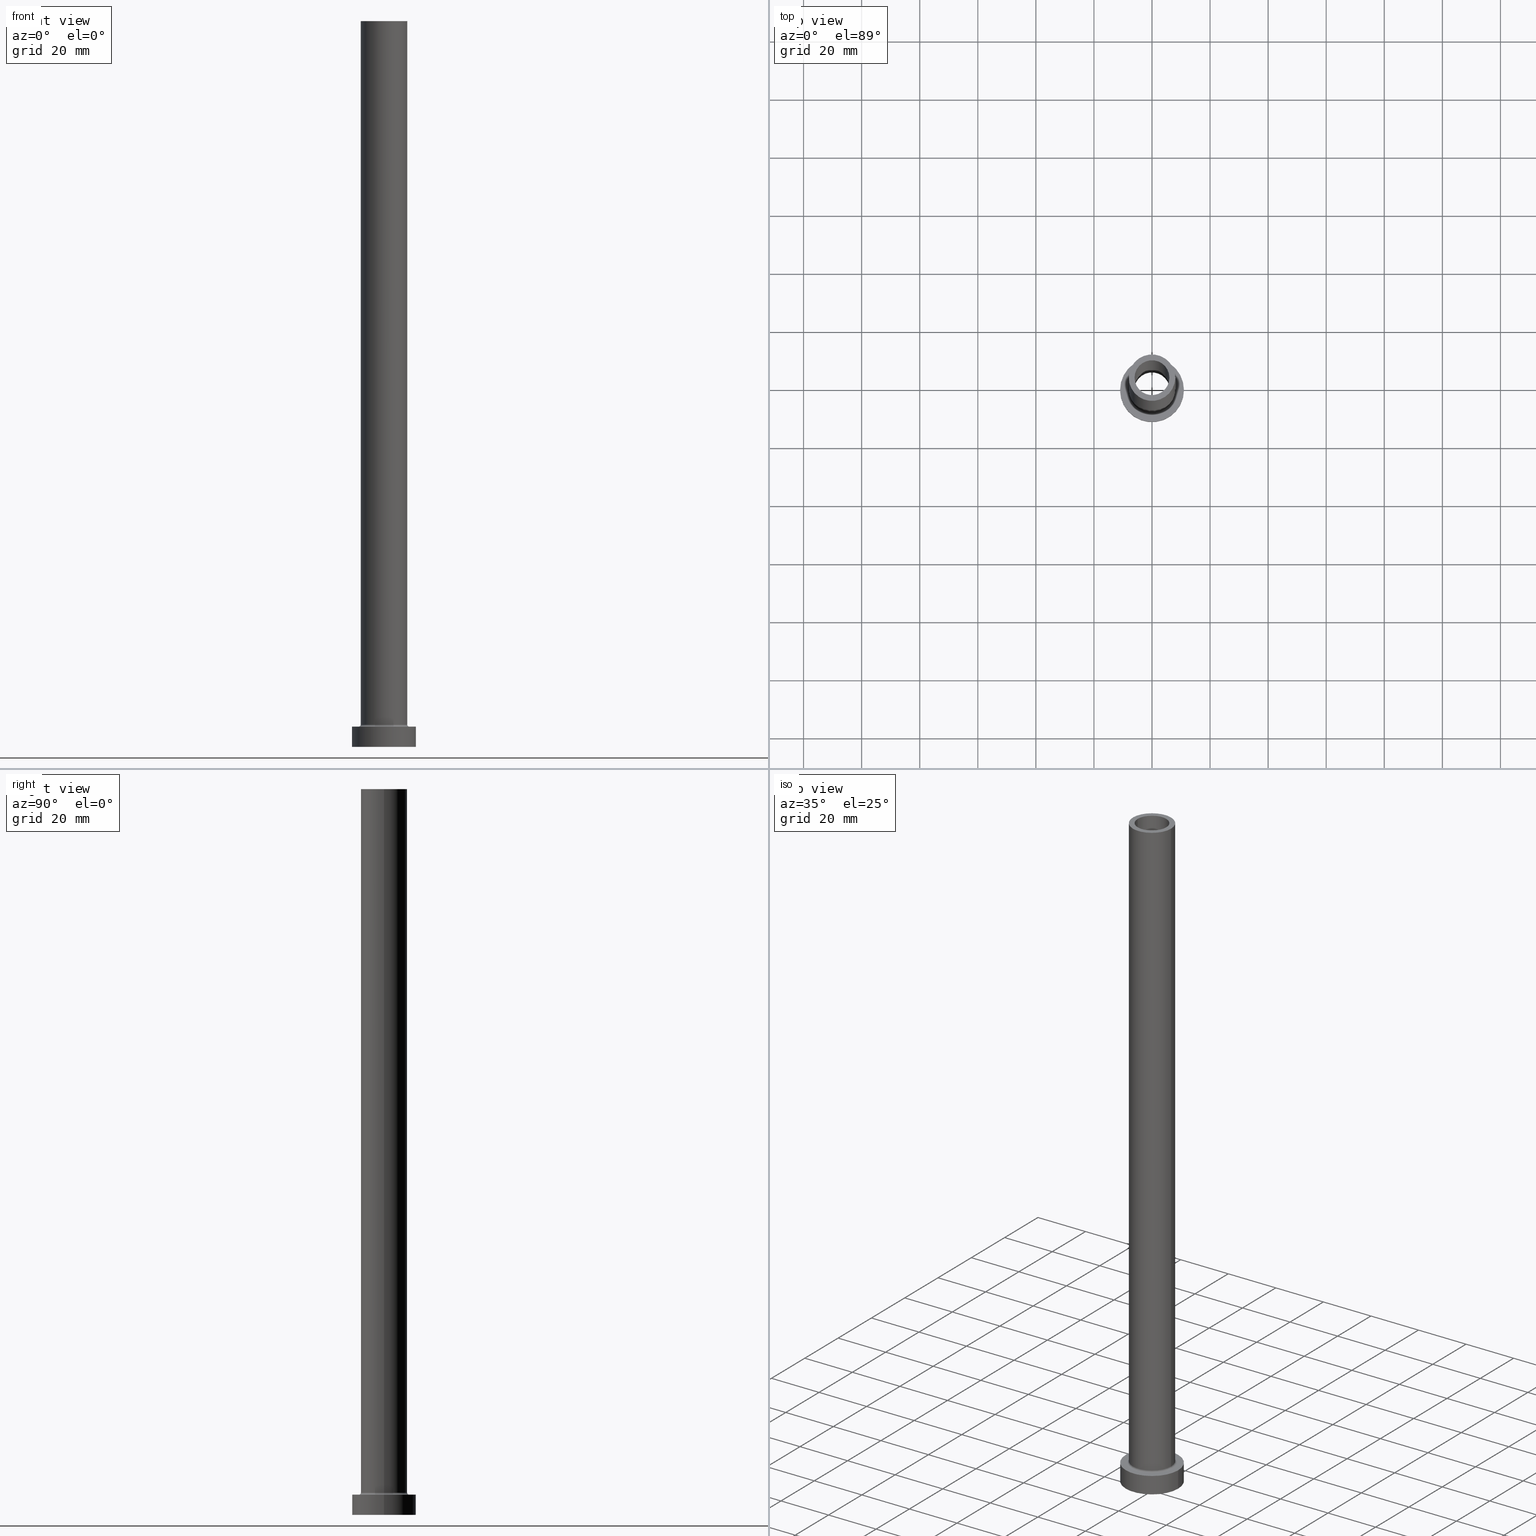
[diagram: canonical four-view strip — front | top / right | iso, engineering-drawing reading convention]
A machine part, canonical four-view strip (front | top / right | iso — engineering-drawing reading convention). The complete STEP part file that produces these views, byte-faithful:
ISO-10303-21;
HEADER;
FILE_DESCRIPTION (( 'STEP AP203' ),
    '1' );
FILE_NAME ('c211.STEP',
    '2023-02-13T07:41:48',
    ( '' ),
    ( '' ),
    'SwSTEP 2.0',
    'SolidWorks 2019',
    '' );
FILE_SCHEMA (( 'CONFIG_CONTROL_DESIGN' ));
ENDSEC;

DATA;
#1 = VERTEX_POINT ( 'NONE', #60 ) ;
#2 = ORIENTED_EDGE ( 'NONE', *, *, #427, .F. ) ;
#3 = CYLINDRICAL_SURFACE ( 'NONE', #113, 8.000000000000000000 ) ;
#4 = EDGE_CURVE ( 'NONE', #99, #182, #120, .T. ) ;
#5 = DIRECTION ( 'NONE',  ( 0.000000000000000000, 0.000000000000000000, 1.000000000000000000 ) ) ;
#6 = ORIENTED_EDGE ( 'NONE', *, *, #343, .F. ) ;
#7 = FACE_OUTER_BOUND ( 'NONE', #455, .T. ) ;
#8 = EDGE_CURVE ( 'NONE', #459, #311, #299, .T. ) ;
#9 = CLOSED_SHELL ( 'NONE', ( #107, #49, #171, #89, #153, #320, #443, #275, #84, #54, #461, #241, #287, #16 ) ) ;
#10 = LOCAL_TIME ( 8, 41, 48.00000000000000000, #398 ) ;
#11 = APPLICATION_PROTOCOL_DEFINITION ( 'international standard', 'config_control_design', 1994, #349 ) ;
#12 = DIRECTION ( 'NONE',  ( 0.000000000000000000, 0.000000000000000000, -1.000000000000000000 ) ) ;
#13 = DATE_AND_TIME ( #366, #10 ) ;
#14 = ADVANCED_BREP_SHAPE_REPRESENTATION ( 'c211', ( #23, #36 ), #452 ) ;
#15 = PLANE ( 'NONE',  #45 ) ;
#16 = ADVANCED_FACE ( 'NONE', ( #199 ), #340, .F. ) ;
#17 = EDGE_LOOP ( 'NONE', ( #245, #172 ) ) ;
#18 = AXIS2_PLACEMENT_3D ( 'NONE', #145, #117, #118 ) ;
#19 = TOROIDAL_SURFACE ( 'NONE', #280, 8.699999999999999289, 0.6999999999999999556 ) ;
#20 = CARTESIAN_POINT ( 'NONE',  ( -6.000000000000000888, 0.000000000000000000, 205.0000000000000284 ) ) ;
#21 = CARTESIAN_POINT ( 'NONE',  ( 0.000000000000000000, 0.000000000000000000, 205.0000000000000284 ) ) ;
#22 = FACE_OUTER_BOUND ( 'NONE', #220, .T. ) ;
#23 = MANIFOLD_SOLID_BREP ( 'Odebrat vysunut�m4', #9 ) ;
#24 = EDGE_LOOP ( 'NONE', ( #383, #395, #177, #236 ) ) ;
#25 = PERSON_AND_ORGANIZATION_ROLE ( 'creator' ) ;
#26 = AXIS2_PLACEMENT_3D ( 'NONE', #259, #5, #46 ) ;
#27 = CARTESIAN_POINT ( 'NONE',  ( 0.000000000000000000, 0.000000000000000000, 7.000000000000000000 ) ) ;
#28 = APPROVAL_DATE_TIME ( #197, #336 ) ;
#29 = PRODUCT_DEFINITION ( 'NEZN�M�', '', #254, #210 ) ;
#30 = CYLINDRICAL_SURFACE ( 'NONE', #161, 11.00000000000000000 ) ;
#31 = APPROVAL_DATE_TIME ( #372, #278 ) ;
#32 = AXIS2_PLACEMENT_3D ( 'NONE', #429, #106, #323 ) ;
#33 = ORIENTED_EDGE ( 'NONE', *, *, #282, .T. ) ;
#34 = ORIENTED_EDGE ( 'NONE', *, *, #310, .F. ) ;
#35 = CARTESIAN_POINT ( 'NONE',  ( -6.150000000000000355, 0.000000000000000000, 222.3948268171890845 ) ) ;
#36 = AXIS2_PLACEMENT_3D ( 'NONE', #442, #327, #301 ) ;
#37 = VERTEX_POINT ( 'NONE', #267 ) ;
#38 = CARTESIAN_POINT ( 'NONE',  ( -8.000000000000000000, 0.000000000000000000, 7.700000000000012612 ) ) ;
#39 = CARTESIAN_POINT ( 'NONE',  ( 0.000000000000000000, 0.000000000000000000, 7.700000000000012612 ) ) ;
#40 = EDGE_LOOP ( 'NONE', ( #290, #364, #189, #432 ) ) ;
#41 = DIRECTION ( 'NONE',  ( 1.000000000000000000, 0.000000000000000000, 0.000000000000000000 ) ) ;
#42 = VERTEX_POINT ( 'NONE', #404 ) ;
#43 = CARTESIAN_POINT ( 'NONE',  ( 0.000000000000000000, 0.000000000000000000, 205.0000000000000284 ) ) ;
#44 = DIRECTION ( 'NONE',  ( 1.000000000000000000, 0.000000000000000000, 0.000000000000000000 ) ) ;
#45 = AXIS2_PLACEMENT_3D ( 'NONE', #396, #82, #221 ) ;
#46 = DIRECTION ( 'NONE',  ( 1.000000000000000000, 0.000000000000000000, -0.000000000000000000 ) ) ;
#47 = VECTOR ( 'NONE', #105, 1000.000000000000000 ) ;
#48 = CARTESIAN_POINT ( 'NONE',  ( 8.000000000000000000, 9.797174393178825657E-16, 7.700000000000012612 ) ) ;
#49 = ADVANCED_FACE ( 'NONE', ( #92 ), #302, .F. ) ;
#50 = DIRECTION ( 'NONE',  ( -1.000000000000000000, 0.000000000000000000, 0.000000000000000000 ) ) ;
#51 =( LENGTH_UNIT ( ) NAMED_UNIT ( * ) SI_UNIT ( .MILLI., .METRE. ) );
#52 = ORIENTED_EDGE ( 'NONE', *, *, #265, .F. ) ;
#53 = CARTESIAN_POINT ( 'NONE',  ( 11.00000000000000000, 1.347111479062088405E-15, 0.000000000000000000 ) ) ;
#54 = ADVANCED_FACE ( 'NONE', ( #447, #129 ), #387, .T. ) ;
#55 = ORIENTED_EDGE ( 'NONE', *, *, #355, .F. ) ;
#56 = CIRCLE ( 'NONE', #131, 6.150000000000000355 ) ;
#57 = AXIS2_PLACEMENT_3D ( 'NONE', #341, #165, #203 ) ;
#58 = ORIENTED_EDGE ( 'NONE', *, *, #159, .T. ) ;
#59 = PERSON_AND_ORGANIZATION ( #318, #147 ) ;
#60 = CARTESIAN_POINT ( 'NONE',  ( 8.000000000000000000, 9.797174393178825657E-16, 250.0000000000000000 ) ) ;
#61 = DIRECTION ( 'NONE',  ( 0.000000000000000000, 0.000000000000000000, 1.000000000000000000 ) ) ;
#62 = AXIS2_PLACEMENT_3D ( 'NONE', #181, #212, #44 ) ;
#63 = ORIENTED_EDGE ( 'NONE', *, *, #94, .F. ) ;
#64 = DIRECTION ( 'NONE',  ( 0.000000000000000000, 0.000000000000000000, 1.000000000000000000 ) ) ;
#65 = DIRECTION ( 'NONE',  ( 1.000000000000000000, 0.000000000000000000, 0.000000000000000000 ) ) ;
#66 = COORDINATED_UNIVERSAL_TIME_OFFSET ( 1, 0, .AHEAD. ) ;
#67 = CIRCLE ( 'NONE', #146, 8.000000000000000000 ) ;
#68 = VERTEX_POINT ( 'NONE', #316 ) ;
#69 = ORIENTED_EDGE ( 'NONE', *, *, #427, .T. ) ;
#70 = DIRECTION ( 'NONE',  ( 1.000000000000000000, 0.000000000000000000, -0.000000000000000000 ) ) ;
#71 = CARTESIAN_POINT ( 'NONE',  ( 8.000000000000000000, 9.797174393178825657E-16, 250.0000000000000000 ) ) ;
#72 = EDGE_LOOP ( 'NONE', ( #216, #55 ) ) ;
#73 = DIRECTION ( 'NONE',  ( 0.000000000000000000, 0.000000000000000000, -1.000000000000000000 ) ) ;
#74 = EDGE_LOOP ( 'NONE', ( #222, #251, #188, #115 ) ) ;
#75 = DIRECTION ( 'NONE',  ( 0.000000000000000000, 0.000000000000000000, 1.000000000000000000 ) ) ;
#76 = EDGE_LOOP ( 'NONE', ( #337, #353 ) ) ;
#77 = CARTESIAN_POINT ( 'NONE',  ( -8.000000000000000000, 0.000000000000000000, 250.0000000000000000 ) ) ;
#78 = CARTESIAN_POINT ( 'NONE',  ( 8.699999999999999289, 0.000000000000000000, 7.000000000000006217 ) ) ;
#79 = CARTESIAN_POINT ( 'NONE',  ( 0.000000000000000000, 0.000000000000000000, 250.0000000000000000 ) ) ;
#80 = EDGE_CURVE ( 'NONE', #42, #37, #433, .T. ) ;
#81 = VERTEX_POINT ( 'NONE', #246 ) ;
#82 = DIRECTION ( 'NONE',  ( 0.000000000000000000, 0.000000000000000000, 1.000000000000000000 ) ) ;
#83 = ORIENTED_EDGE ( 'NONE', *, *, #140, .F. ) ;
#84 = ADVANCED_FACE ( 'NONE', ( #356 ), #3, .T. ) ;
#85 = CIRCLE ( 'NONE', #198, 8.000000000000000000 ) ;
#86 = CYLINDRICAL_SURFACE ( 'NONE', #346, 6.150000000000000355 ) ;
#87 = CARTESIAN_POINT ( 'NONE',  ( 0.000000000000000000, 0.000000000000000000, 7.000000000000000000 ) ) ;
#88 = DIRECTION ( 'NONE',  ( -0.000000000000000000, -0.000000000000000000, -1.000000000000000000 ) ) ;
#89 = ADVANCED_FACE ( 'NONE', ( #288 ), #166, .T. ) ;
#90 = EDGE_LOOP ( 'NONE', ( #144, #388, #314, #289 ) ) ;
#91 = DIRECTION ( 'NONE',  ( 1.000000000000000000, 0.000000000000000000, 0.000000000000000000 ) ) ;
#92 = FACE_OUTER_BOUND ( 'NONE', #40, .T. ) ;
#93 = DIRECTION ( 'NONE',  ( 0.000000000000000000, 0.000000000000000000, 1.000000000000000000 ) ) ;
#94 = EDGE_CURVE ( 'NONE', #130, #223, #365, .T. ) ;
#95 = AXIS2_PLACEMENT_3D ( 'NONE', #237, #93, #338 ) ;
#96 = MECHANICAL_CONTEXT ( 'NONE', #163, 'mechanical' ) ;
#97 = CALENDAR_DATE ( 2023, 13, 2 ) ;
#98 = CC_DESIGN_PERSON_AND_ORGANIZATION_ASSIGNMENT ( #274, #134, ( #254 ) ) ;
#99 = VERTEX_POINT ( 'NONE', #414 ) ;
#100 = PERSON_AND_ORGANIZATION_ROLE ( 'classification_officer' ) ;
#101 = ORIENTED_EDGE ( 'NONE', *, *, #265, .T. ) ;
#102 = LINE ( 'NONE', #394, #213 ) ;
#103 = SECURITY_CLASSIFICATION_LEVEL ( 'unclassified' ) ;
#104 = AXIS2_PLACEMENT_3D ( 'NONE', #389, #363, #298 ) ;
#105 = DIRECTION ( 'NONE',  ( -0.000000000000000000, -0.000000000000000000, -1.000000000000000000 ) ) ;
#106 = DIRECTION ( 'NONE',  ( -0.000000000000000000, -0.000000000000000000, -1.000000000000000000 ) ) ;
#107 = ADVANCED_FACE ( 'NONE', ( #202 ), #258, .F. ) ;
#108 = ORIENTED_EDGE ( 'NONE', *, *, #303, .F. ) ;
#109 = EDGE_CURVE ( 'NONE', #37, #162, #406, .T. ) ;
#110 = CARTESIAN_POINT ( 'NONE',  ( 0.000000000000000000, 0.000000000000000000, 222.3948268171890845 ) ) ;
#111 = VERTEX_POINT ( 'NONE', #38 ) ;
#112 = CARTESIAN_POINT ( 'NONE',  ( 0.000000000000000000, 0.000000000000000000, 0.000000000000000000 ) ) ;
#113 = AXIS2_PLACEMENT_3D ( 'NONE', #276, #211, #174 ) ;
#114 = AXIS2_PLACEMENT_3D ( 'NONE', #307, #64, #201 ) ;
#115 = ORIENTED_EDGE ( 'NONE', *, *, #195, .T. ) ;
#116 = CARTESIAN_POINT ( 'NONE',  ( 0.000000000000000000, 0.000000000000000000, 250.0000000000000000 ) ) ;
#117 = DIRECTION ( 'NONE',  ( 0.000000000000000000, 0.000000000000000000, 1.000000000000000000 ) ) ;
#118 = DIRECTION ( 'NONE',  ( 1.000000000000000000, 0.000000000000000000, 0.000000000000000000 ) ) ;
#119 = CARTESIAN_POINT ( 'NONE',  ( 6.000000000000000888, 7.347880794884119736E-16, 205.0000000000000284 ) ) ;
#120 = CIRCLE ( 'NONE', #270, 11.00000000000000000 ) ;
#121 = EDGE_CURVE ( 'NONE', #162, #37, #56, .T. ) ;
#122 = SHAPE_DEFINITION_REPRESENTATION ( #255, #14 ) ;
#123 = PLANE ( 'NONE',  #26 ) ;
#124 = SECURITY_CLASSIFICATION ( '', '', #103 ) ;
#125 = CARTESIAN_POINT ( 'NONE',  ( 6.000000000000000888, 7.347880794884119736E-16, 250.0000000000000000 ) ) ;
#126 = DIRECTION ( 'NONE',  ( 1.000000000000000000, 0.000000000000000000, 0.000000000000000000 ) ) ;
#127 = DIRECTION ( 'NONE',  ( 0.000000000000000000, 0.000000000000000000, 1.000000000000000000 ) ) ;
#128 = DIRECTION ( 'NONE',  ( 0.000000000000000000, 0.000000000000000000, -1.000000000000000000 ) ) ;
#129 = FACE_OUTER_BOUND ( 'NONE', #17, .T. ) ;
#130 = VERTEX_POINT ( 'NONE', #248 ) ;
#131 = AXIS2_PLACEMENT_3D ( 'NONE', #112, #328, #178 ) ;
#132 = CC_DESIGN_SECURITY_CLASSIFICATION ( #124, ( #254 ) ) ;
#133 = PERSON_AND_ORGANIZATION ( #318, #147 ) ;
#134 = PERSON_AND_ORGANIZATION_ROLE ( 'design_supplier' ) ;
#135 = CARTESIAN_POINT ( 'NONE',  ( -11.00000000000000000, 0.000000000000000000, 7.000000000000000000 ) ) ;
#136 = CARTESIAN_POINT ( 'NONE',  ( 0.000000000000000000, 0.000000000000000000, 250.0000000000000000 ) ) ;
#137 = CIRCLE ( 'NONE', #430, 8.699999999999999289 ) ;
#138 = ORIENTED_EDGE ( 'NONE', *, *, #140, .T. ) ;
#139 = CARTESIAN_POINT ( 'NONE',  ( 0.000000000000000000, 0.000000000000000000, 250.0000000000000000 ) ) ;
#140 = EDGE_CURVE ( 'NONE', #435, #311, #102, .T. ) ;
#141 = FACE_OUTER_BOUND ( 'NONE', #386, .T. ) ;
#142 = ORIENTED_EDGE ( 'NONE', *, *, #355, .T. ) ;
#143 = DIRECTION ( 'NONE',  ( 0.000000000000000000, 0.000000000000000000, 1.000000000000000000 ) ) ;
#144 = ORIENTED_EDGE ( 'NONE', *, *, #4, .F. ) ;
#145 = CARTESIAN_POINT ( 'NONE',  ( 0.000000000000000000, 0.000000000000000000, 7.700000000000012612 ) ) ;
#146 = AXIS2_PLACEMENT_3D ( 'NONE', #369, #257, #357 ) ;
#147 = ORGANIZATION ( 'NEUR�EN�', 'NEUR�EN�', '' ) ;
#148 = EDGE_CURVE ( 'NONE', #1, #260, #370, .T. ) ;
#149 = CARTESIAN_POINT ( 'NONE',  ( 0.000000000000000000, 0.000000000000000000, 205.0000000000000284 ) ) ;
#150 = APPROVAL_ROLE ( '' ) ;
#151 = DIRECTION ( 'NONE',  ( 0.000000000000000000, 0.000000000000000000, -1.000000000000000000 ) ) ;
#152 = DIRECTION ( 'NONE',  ( 1.000000000000000000, 0.000000000000000000, 0.000000000000000000 ) ) ;
#153 = ADVANCED_FACE ( 'NONE', ( #238 ), #30, .T. ) ;
#154 = VECTOR ( 'NONE', #73, 1000.000000000000000 ) ;
#155 = LOCAL_TIME ( 8, 41, 48.00000000000000000, #284 ) ;
#156 = FACE_OUTER_BOUND ( 'NONE', #322, .T. ) ;
#157 = CARTESIAN_POINT ( 'NONE',  ( 0.000000000000000000, 0.000000000000000000, 250.0000000000000000 ) ) ;
#158 = EDGE_LOOP ( 'NONE', ( #297, #138, #283, #306 ) ) ;
#159 = EDGE_CURVE ( 'NONE', #223, #130, #137, .T. ) ;
#160 = EDGE_CURVE ( 'NONE', #260, #111, #391, .T. ) ;
#161 = AXIS2_PLACEMENT_3D ( 'NONE', #253, #344, #378 ) ;
#162 = VERTEX_POINT ( 'NONE', #185 ) ;
#163 = APPLICATION_CONTEXT ( 'configuration controlled 3d designs of mechanical parts and assemblies' ) ;
#164 = DATE_AND_TIME ( #235, #155 ) ;
#165 = DIRECTION ( 'NONE',  ( 1.224646799147353207E-16, 1.000000000000000000, -0.000000000000000000 ) ) ;
#166 = CYLINDRICAL_SURFACE ( 'NONE', #413, 8.000000000000000000 ) ;
#167 = LINE ( 'NONE', #71, #431 ) ;
#168 = PERSON_AND_ORGANIZATION_ROLE ( 'creator' ) ;
#169 = AXIS2_PLACEMENT_3D ( 'NONE', #79, #319, #41 ) ;
#170 = CIRCLE ( 'NONE', #114, 11.00000000000000000 ) ;
#171 = ADVANCED_FACE ( 'NONE', ( #7 ), #277, .F. ) ;
#172 = ORIENTED_EDGE ( 'NONE', *, *, #148, .T. ) ;
#173 = CC_DESIGN_PERSON_AND_ORGANIZATION_ASSIGNMENT ( #416, #25, ( #29 ) ) ;
#174 = DIRECTION ( 'NONE',  ( -1.000000000000000000, 0.000000000000000000, 0.000000000000000000 ) ) ;
#175 = ORIENTED_EDGE ( 'NONE', *, *, #263, .T. ) ;
#176 = DIRECTION ( 'NONE',  ( 0.000000000000000000, 0.000000000000000000, -1.000000000000000000 ) ) ;
#177 = ORIENTED_EDGE ( 'NONE', *, *, #325, .T. ) ;
#178 = DIRECTION ( 'NONE',  ( 1.000000000000000000, 0.000000000000000000, 0.000000000000000000 ) ) ;
#179 = DIRECTION ( 'NONE',  ( 1.000000000000000000, 0.000000000000000000, 0.000000000000000000 ) ) ;
#180 = EDGE_LOOP ( 'NONE', ( #2, #209 ) ) ;
#181 = CARTESIAN_POINT ( 'NONE',  ( 0.000000000000000000, 0.000000000000000000, 7.000000000000000000 ) ) ;
#182 = VERTEX_POINT ( 'NONE', #227 ) ;
#183 = FACE_OUTER_BOUND ( 'NONE', #180, .T. ) ;
#184 = PERSON_AND_ORGANIZATION ( #318, #147 ) ;
#185 = CARTESIAN_POINT ( 'NONE',  ( 6.150000000000000355, 7.531577814756222064E-16, 0.000000000000000000 ) ) ;
#186 = CIRCLE ( 'NONE', #242, 6.150000000000000355 ) ;
#187 = CARTESIAN_POINT ( 'NONE',  ( 8.699999999999999289, 0.000000000000000000, 7.700000000000012612 ) ) ;
#188 = ORIENTED_EDGE ( 'NONE', *, *, #160, .T. ) ;
#189 = ORIENTED_EDGE ( 'NONE', *, *, #121, .T. ) ;
#190 = CC_DESIGN_PERSON_AND_ORGANIZATION_ASSIGNMENT ( #454, #168, ( #254 ) ) ;
#191 = VECTOR ( 'NONE', #217, 1000.000000000000000 ) ;
#192 = PERSON_AND_ORGANIZATION_ROLE ( 'design_owner' ) ;
#193 = VERTEX_POINT ( 'NONE', #324 ) ;
#194 = DIRECTION ( 'NONE',  ( 0.000000000000000000, 0.000000000000000000, -1.000000000000000000 ) ) ;
#195 = EDGE_CURVE ( 'NONE', #111, #450, #381, .T. ) ;
#196 = DIRECTION ( 'NONE',  ( 1.000000000000000000, 0.000000000000000000, 0.000000000000000000 ) ) ;
#197 = DATE_AND_TIME ( #200, #206 ) ;
#198 = AXIS2_PLACEMENT_3D ( 'NONE', #408, #61, #268 ) ;
#199 = FACE_OUTER_BOUND ( 'NONE', #350, .T. ) ;
#200 = CALENDAR_DATE ( 2023, 13, 2 ) ;
#201 = DIRECTION ( 'NONE',  ( 1.000000000000000000, 0.000000000000000000, 0.000000000000000000 ) ) ;
#202 = FACE_OUTER_BOUND ( 'NONE', #158, .T. ) ;
#203 = DIRECTION ( 'NONE',  ( -1.000000000000000000, 1.224646799147353207E-16, 0.000000000000000000 ) ) ;
#204 = EDGE_CURVE ( 'NONE', #311, #459, #231, .T. ) ;
#205 = CARTESIAN_POINT ( 'NONE',  ( 0.000000000000000000, 0.000000000000000000, 250.0000000000000000 ) ) ;
#206 = LOCAL_TIME ( 8, 41, 48.00000000000000000, #377 ) ;
#207 = LINE ( 'NONE', #135, #47 ) ;
#208 = ORIENTED_EDGE ( 'NONE', *, *, #422, .F. ) ;
#209 = ORIENTED_EDGE ( 'NONE', *, *, #329, .F. ) ;
#210 = DESIGN_CONTEXT ( 'detailed design', #349, 'design' ) ;
#211 = DIRECTION ( 'NONE',  ( -0.000000000000000000, -0.000000000000000000, -1.000000000000000000 ) ) ;
#212 = DIRECTION ( 'NONE',  ( -0.000000000000000000, -0.000000000000000000, -1.000000000000000000 ) ) ;
#213 = VECTOR ( 'NONE', #453, 1000.000000000000000 ) ;
#214 = LOCAL_TIME ( 8, 41, 48.00000000000000000, #448 ) ;
#215 = DIRECTION ( 'NONE',  ( -0.000000000000000000, -0.000000000000000000, -1.000000000000000000 ) ) ;
#216 = ORIENTED_EDGE ( 'NONE', *, *, #247, .F. ) ;
#217 = DIRECTION ( 'NONE',  ( -0.000000000000000000, -0.000000000000000000, -1.000000000000000000 ) ) ;
#218 = LINE ( 'NONE', #402, #334 ) ;
#219 = ORIENTED_EDGE ( 'NONE', *, *, #109, .F. ) ;
#220 = EDGE_LOOP ( 'NONE', ( #421, #332 ) ) ;
#221 = DIRECTION ( 'NONE',  ( 1.000000000000000000, 0.000000000000000000, -0.000000000000000000 ) ) ;
#222 = ORIENTED_EDGE ( 'NONE', *, *, #373, .F. ) ;
#223 = VERTEX_POINT ( 'NONE', #78 ) ;
#224 = VECTOR ( 'NONE', #215, 1000.000000000000000 ) ;
#225 = CC_DESIGN_APPROVAL ( #278, ( #254 ) ) ;
#226 = CARTESIAN_POINT ( 'NONE',  ( 6.150000000000000355, 7.531577814756222064E-16, 222.3948268171890845 ) ) ;
#227 = CARTESIAN_POINT ( 'NONE',  ( -11.00000000000000000, 0.000000000000000000, 7.000000000000000000 ) ) ;
#228 = PERSON_AND_ORGANIZATION ( #318, #147 ) ;
#229 = DIRECTION ( 'NONE',  ( -1.000000000000000000, 0.000000000000000000, 0.000000000000000000 ) ) ;
#230 = DIRECTION ( 'NONE',  ( 0.000000000000000000, 0.000000000000000000, -1.000000000000000000 ) ) ;
#231 = CIRCLE ( 'NONE', #375, 6.000000000000000888 ) ;
#232 =( NAMED_UNIT ( * ) PLANE_ANGLE_UNIT ( ) SI_UNIT ( $, .RADIAN. ) );
#233 = EDGE_LOOP ( 'NONE', ( #219, #312 ) ) ;
#234 = DIRECTION ( 'NONE',  ( -1.000000000000000000, 0.000000000000000000, 0.000000000000000000 ) ) ;
#235 = CALENDAR_DATE ( 2023, 13, 2 ) ;
#236 = ORIENTED_EDGE ( 'NONE', *, *, #160, .F. ) ;
#237 = CARTESIAN_POINT ( 'NONE',  ( 0.000000000000000000, 0.000000000000000000, 0.000000000000000000 ) ) ;
#238 = FACE_OUTER_BOUND ( 'NONE', #90, .T. ) ;
#239 = PRODUCT_RELATED_PRODUCT_CATEGORY ( 'detail', '', ( #392 ) ) ;
#240 = APPROVAL_DATE_TIME ( #13, #362 ) ;
#241 = ADVANCED_FACE ( 'NONE', ( #291 ), #86, .F. ) ;
#242 = AXIS2_PLACEMENT_3D ( 'NONE', #149, #295, #152 ) ;
#243 = APPROVAL_PERSON_ORGANIZATION ( #133, #336, #417 ) ;
#244 = CC_DESIGN_DATE_AND_TIME_ASSIGNMENT ( #409, #411, ( #29 ) ) ;
#245 = ORIENTED_EDGE ( 'NONE', *, *, #256, .T. ) ;
#246 = CARTESIAN_POINT ( 'NONE',  ( -6.000000000000000888, 0.000000000000000000, 250.0000000000000000 ) ) ;
#247 = EDGE_CURVE ( 'NONE', #81, #435, #420, .T. ) ;
#248 = CARTESIAN_POINT ( 'NONE',  ( -8.699999999999999289, 1.065442715258197248E-15, 7.000000000000006217 ) ) ;
#249 = ORIENTED_EDGE ( 'NONE', *, *, #195, .F. ) ;
#250 = CARTESIAN_POINT ( 'NONE',  ( -8.000000000000000000, 0.000000000000000000, 250.0000000000000000 ) ) ;
#251 = ORIENTED_EDGE ( 'NONE', *, *, #256, .F. ) ;
#252 = AXIS2_PLACEMENT_3D ( 'NONE', #286, #143, #70 ) ;
#253 = CARTESIAN_POINT ( 'NONE',  ( 0.000000000000000000, 0.000000000000000000, 7.000000000000000000 ) ) ;
#254 = PRODUCT_DEFINITION_FORMATION_WITH_SPECIFIED_SOURCE ( 'LIBOVOLN�', '', #392, .NOT_KNOWN. ) ;
#255 = PRODUCT_DEFINITION_SHAPE ( 'NONE', 'NONE',  #29 ) ;
#256 = EDGE_CURVE ( 'NONE', #260, #1, #67, .T. ) ;
#257 = DIRECTION ( 'NONE',  ( 0.000000000000000000, 0.000000000000000000, 1.000000000000000000 ) ) ;
#258 = CYLINDRICAL_SURFACE ( 'NONE', #412, 6.000000000000000888 ) ;
#259 = CARTESIAN_POINT ( 'NONE',  ( 0.000000000000000000, 0.000000000000000000, 0.000000000000000000 ) ) ;
#260 = VERTEX_POINT ( 'NONE', #250 ) ;
#261 = CYLINDRICAL_SURFACE ( 'NONE', #339, 11.00000000000000000 ) ;
#262 = DIRECTION ( 'NONE',  ( 0.000000000000000000, 0.000000000000000000, 1.000000000000000000 ) ) ;
#263 = EDGE_CURVE ( 'NONE', #81, #459, #218, .T. ) ;
#264 = DIRECTION ( 'NONE',  ( 0.000000000000000000, -1.000000000000000000, 0.000000000000000000 ) ) ;
#265 = EDGE_CURVE ( 'NONE', #450, #223, #400, .T. ) ;
#266 = ORIENTED_EDGE ( 'NONE', *, *, #159, .F. ) ;
#267 = CARTESIAN_POINT ( 'NONE',  ( -6.150000000000000355, 0.000000000000000000, 0.000000000000000000 ) ) ;
#268 = DIRECTION ( 'NONE',  ( 1.000000000000000000, 0.000000000000000000, 0.000000000000000000 ) ) ;
#269 = DIRECTION ( 'NONE',  ( 0.000000000000000000, 0.000000000000000000, 1.000000000000000000 ) ) ;
#270 = AXIS2_PLACEMENT_3D ( 'NONE', #27, #335, #196 ) ;
#271 = DIRECTION ( 'NONE',  ( 0.000000000000000000, 0.000000000000000000, 1.000000000000000000 ) ) ;
#272 = CC_DESIGN_APPROVAL ( #336, ( #124 ) ) ;
#273 = CALENDAR_DATE ( 2023, 13, 2 ) ;
#274 = PERSON_AND_ORGANIZATION ( #318, #147 ) ;
#275 = ADVANCED_FACE ( 'NONE', ( #359, #183 ), #123, .F. ) ;
#276 = CARTESIAN_POINT ( 'NONE',  ( 0.000000000000000000, 0.000000000000000000, 250.0000000000000000 ) ) ;
#277 = TOROIDAL_SURFACE ( 'NONE', #18, 8.699999999999999289, 0.6999999999999999556 ) ;
#278 = APPROVAL ( #374, 'NEUR�EN�' ) ;
#279 = VECTOR ( 'NONE', #230, 1000.000000000000000 ) ;
#280 = AXIS2_PLACEMENT_3D ( 'NONE', #444, #262, #126 ) ;
#281 = APPROVAL_STATUS ( 'not_yet_approved' ) ;
#282 = EDGE_CURVE ( 'NONE', #193, #42, #186, .T. ) ;
#283 = ORIENTED_EDGE ( 'NONE', *, *, #8, .F. ) ;
#284 = COORDINATED_UNIVERSAL_TIME_OFFSET ( 1, 0, .AHEAD. ) ;
#285 = CIRCLE ( 'NONE', #457, 11.00000000000000000 ) ;
#286 = CARTESIAN_POINT ( 'NONE',  ( 0.000000000000000000, 0.000000000000000000, 250.0000000000000000 ) ) ;
#287 = ADVANCED_FACE ( 'NONE', ( #434, #141 ), #15, .F. ) ;
#288 = FACE_OUTER_BOUND ( 'NONE', #24, .T. ) ;
#289 = ORIENTED_EDGE ( 'NONE', *, *, #380, .F. ) ;
#290 = ORIENTED_EDGE ( 'NONE', *, *, #303, .T. ) ;
#291 = FACE_OUTER_BOUND ( 'NONE', #419, .T. ) ;
#292 = AXIS2_PLACEMENT_3D ( 'NONE', #116, #330, #426 ) ;
#293 = CARTESIAN_POINT ( 'NONE',  ( 0.000000000000000000, 0.000000000000000000, 7.000000000000000000 ) ) ;
#294 = CIRCLE ( 'NONE', #95, 11.00000000000000000 ) ;
#295 = DIRECTION ( 'NONE',  ( 0.000000000000000000, 0.000000000000000000, 1.000000000000000000 ) ) ;
#296 = LINE ( 'NONE', #438, #224 ) ;
#297 = ORIENTED_EDGE ( 'NONE', *, *, #247, .T. ) ;
#298 = DIRECTION ( 'NONE',  ( 1.000000000000000000, 0.000000000000000000, 0.000000000000000000 ) ) ;
#299 = CIRCLE ( 'NONE', #441, 6.000000000000000888 ) ;
#300 = DIRECTION ( 'NONE',  ( -1.000000000000000000, 0.000000000000000000, 0.000000000000000000 ) ) ;
#301 = DIRECTION ( 'NONE',  ( 1.000000000000000000, 0.000000000000000000, 0.000000000000000000 ) ) ;
#302 = CYLINDRICAL_SURFACE ( 'NONE', #352, 6.150000000000000355 ) ;
#303 = EDGE_CURVE ( 'NONE', #42, #193, #304, .T. ) ;
#304 = CIRCLE ( 'NONE', #104, 6.150000000000000355 ) ;
#305 = LOCAL_TIME ( 8, 41, 48.00000000000000000, #66 ) ;
#306 = ORIENTED_EDGE ( 'NONE', *, *, #263, .F. ) ;
#307 = CARTESIAN_POINT ( 'NONE',  ( 0.000000000000000000, 0.000000000000000000, 7.000000000000000000 ) ) ;
#308 = DIRECTION ( 'NONE',  ( -0.000000000000000000, -0.000000000000000000, -1.000000000000000000 ) ) ;
#309 = AXIS2_PLACEMENT_3D ( 'NONE', #157, #194, #300 ) ;
#310 = EDGE_CURVE ( 'NONE', #99, #437, #296, .T. ) ;
#311 = VERTEX_POINT ( 'NONE', #119 ) ;
#312 = ORIENTED_EDGE ( 'NONE', *, *, #121, .F. ) ;
#313 = AXIS2_PLACEMENT_3D ( 'NONE', #39, #75, #179 ) ;
#314 = ORIENTED_EDGE ( 'NONE', *, *, #329, .T. ) ;
#315 = AXIS2_PLACEMENT_3D ( 'NONE', #87, #127, #333 ) ;
#316 = CARTESIAN_POINT ( 'NONE',  ( -11.00000000000000000, 0.000000000000000000, 0.000000000000000000 ) ) ;
#317 = ORIENTED_EDGE ( 'NONE', *, *, #94, .T. ) ;
#318 = PERSON ( 'NEUR�EN�', 'NEUR�EN�', 'NEUR�EN�', ('NEUR�EN�'), ('NEUR�EN�'), ('NEUR�EN�') ) ;
#319 = DIRECTION ( 'NONE',  ( 0.000000000000000000, 0.000000000000000000, 1.000000000000000000 ) ) ;
#320 = ADVANCED_FACE ( 'NONE', ( #440 ), #261, .T. ) ;
#321 = DIRECTION ( 'NONE',  ( 0.000000000000000000, 0.000000000000000000, 1.000000000000000000 ) ) ;
#322 = EDGE_LOOP ( 'NONE', ( #6, #428, #101, #63 ) ) ;
#323 = DIRECTION ( 'NONE',  ( 1.000000000000000000, 0.000000000000000000, 0.000000000000000000 ) ) ;
#324 = CARTESIAN_POINT ( 'NONE',  ( 6.150000000000000355, 7.531577814756222064E-16, 205.0000000000000284 ) ) ;
#325 = EDGE_CURVE ( 'NONE', #450, #111, #85, .T. ) ;
#326 = AXIS2_PLACEMENT_3D ( 'NONE', #187, #264, #176 ) ;
#327 = DIRECTION ( 'NONE',  ( 0.000000000000000000, 0.000000000000000000, 1.000000000000000000 ) ) ;
#328 = DIRECTION ( 'NONE',  ( -0.000000000000000000, -0.000000000000000000, -1.000000000000000000 ) ) ;
#329 = EDGE_CURVE ( 'NONE', #437, #68, #294, .T. ) ;
#330 = DIRECTION ( 'NONE',  ( 0.000000000000000000, 0.000000000000000000, 1.000000000000000000 ) ) ;
#331 = DIRECTION ( 'NONE',  ( 1.000000000000000000, 0.000000000000000000, 0.000000000000000000 ) ) ;
#332 = ORIENTED_EDGE ( 'NONE', *, *, #4, .T. ) ;
#333 = DIRECTION ( 'NONE',  ( 1.000000000000000000, 0.000000000000000000, -0.000000000000000000 ) ) ;
#334 = VECTOR ( 'NONE', #151, 1000.000000000000000 ) ;
#335 = DIRECTION ( 'NONE',  ( 0.000000000000000000, 0.000000000000000000, 1.000000000000000000 ) ) ;
#336 = APPROVAL ( #281, 'NEUR�EN�' ) ;
#337 = ORIENTED_EDGE ( 'NONE', *, *, #8, .T. ) ;
#338 = DIRECTION ( 'NONE',  ( 1.000000000000000000, 0.000000000000000000, 0.000000000000000000 ) ) ;
#339 = AXIS2_PLACEMENT_3D ( 'NONE', #399, #88, #229 ) ;
#340 = CYLINDRICAL_SURFACE ( 'NONE', #309, 6.000000000000000888 ) ;
#341 = CARTESIAN_POINT ( 'NONE',  ( -8.699999999999999289, 1.065442715258197248E-15, 7.700000000000012612 ) ) ;
#342 = EDGE_CURVE ( 'NONE', #182, #99, #170, .T. ) ;
#343 = EDGE_CURVE ( 'NONE', #111, #130, #415, .T. ) ;
#344 = DIRECTION ( 'NONE',  ( -0.000000000000000000, -0.000000000000000000, -1.000000000000000000 ) ) ;
#345 = DIRECTION ( 'NONE',  ( 1.000000000000000000, 0.000000000000000000, 0.000000000000000000 ) ) ;
#346 = AXIS2_PLACEMENT_3D ( 'NONE', #110, #393, #50 ) ;
#347 = APPROVAL_PERSON_ORGANIZATION ( #228, #362, #150 ) ;
#348 = DIRECTION ( 'NONE',  ( -0.000000000000000000, -0.000000000000000000, -1.000000000000000000 ) ) ;
#349 = APPLICATION_CONTEXT ( 'configuration controlled 3d designs of mechanical parts and assemblies' ) ;
#350 = EDGE_LOOP ( 'NONE', ( #83, #142, #175, #360 ) ) ;
#351 = EDGE_LOOP ( 'NONE', ( #34, #397, #423, #69 ) ) ;
#352 = AXIS2_PLACEMENT_3D ( 'NONE', #446, #128, #234 ) ;
#353 = ORIENTED_EDGE ( 'NONE', *, *, #204, .T. ) ;
#354 = APPROVAL_PERSON_ORGANIZATION ( #449, #278, #379 ) ;
#355 = EDGE_CURVE ( 'NONE', #435, #81, #382, .T. ) ;
#356 = FACE_OUTER_BOUND ( 'NONE', #74, .T. ) ;
#357 = DIRECTION ( 'NONE',  ( 1.000000000000000000, 0.000000000000000000, 0.000000000000000000 ) ) ;
#358 = ORIENTED_EDGE ( 'NONE', *, *, #80, .T. ) ;
#359 = FACE_BOUND ( 'NONE', #233, .T. ) ;
#360 = ORIENTED_EDGE ( 'NONE', *, *, #204, .F. ) ;
#361 = DIRECTION ( 'NONE',  ( -0.000000000000000000, -0.000000000000000000, -1.000000000000000000 ) ) ;
#362 = APPROVAL ( #436, 'NEUR�EN�' ) ;
#363 = DIRECTION ( 'NONE',  ( 0.000000000000000000, 0.000000000000000000, 1.000000000000000000 ) ) ;
#364 = ORIENTED_EDGE ( 'NONE', *, *, #422, .T. ) ;
#365 = CIRCLE ( 'NONE', #62, 8.699999999999999289 ) ;
#366 = CALENDAR_DATE ( 2023, 13, 2 ) ;
#367 = UNCERTAINTY_MEASURE_WITH_UNIT (LENGTH_MEASURE( 1.000000000000000082E-05 ), #51, 'distance_accuracy_value', 'NONE');
#368 = EDGE_LOOP ( 'NONE', ( #58, #317 ) ) ;
#369 = CARTESIAN_POINT ( 'NONE',  ( 0.000000000000000000, 0.000000000000000000, 250.0000000000000000 ) ) ;
#370 = CIRCLE ( 'NONE', #169, 8.000000000000000000 ) ;
#371 =( NAMED_UNIT ( * ) SI_UNIT ( $, .STERADIAN. ) SOLID_ANGLE_UNIT ( ) );
#372 = DATE_AND_TIME ( #97, #305 ) ;
#373 = EDGE_CURVE ( 'NONE', #1, #450, #167, .T. ) ;
#374 = APPROVAL_STATUS ( 'not_yet_approved' ) ;
#375 = AXIS2_PLACEMENT_3D ( 'NONE', #43, #321, #331 ) ;
#376 = DIRECTION ( 'NONE',  ( 1.000000000000000000, 0.000000000000000000, 0.000000000000000000 ) ) ;
#377 = COORDINATED_UNIVERSAL_TIME_OFFSET ( 1, 0, .AHEAD. ) ;
#378 = DIRECTION ( 'NONE',  ( -1.000000000000000000, 0.000000000000000000, 0.000000000000000000 ) ) ;
#379 = APPROVAL_ROLE ( '' ) ;
#380 = EDGE_CURVE ( 'NONE', #182, #68, #207, .T. ) ;
#381 = CIRCLE ( 'NONE', #313, 8.000000000000000000 ) ;
#382 = CIRCLE ( 'NONE', #407, 6.000000000000000888 ) ;
#383 = ORIENTED_EDGE ( 'NONE', *, *, #148, .F. ) ;
#384 = ORIENTED_EDGE ( 'NONE', *, *, #343, .T. ) ;
#385 = CC_DESIGN_DATE_AND_TIME_ASSIGNMENT ( #164, #410, ( #124 ) ) ;
#386 = EDGE_LOOP ( 'NONE', ( #108, #390 ) ) ;
#387 = PLANE ( 'NONE',  #252 ) ;
#388 = ORIENTED_EDGE ( 'NONE', *, *, #310, .T. ) ;
#389 = CARTESIAN_POINT ( 'NONE',  ( 0.000000000000000000, 0.000000000000000000, 205.0000000000000284 ) ) ;
#390 = ORIENTED_EDGE ( 'NONE', *, *, #282, .F. ) ;
#391 = LINE ( 'NONE', #77, #191 ) ;
#392 = PRODUCT ( 'c211', 'c211', '', ( #96 ) ) ;
#393 = DIRECTION ( 'NONE',  ( 0.000000000000000000, 0.000000000000000000, -1.000000000000000000 ) ) ;
#394 = CARTESIAN_POINT ( 'NONE',  ( 6.000000000000000888, 7.347880794884119736E-16, 250.0000000000000000 ) ) ;
#395 = ORIENTED_EDGE ( 'NONE', *, *, #373, .T. ) ;
#396 = CARTESIAN_POINT ( 'NONE',  ( 0.000000000000000000, 0.000000000000000000, 205.0000000000000284 ) ) ;
#397 = ORIENTED_EDGE ( 'NONE', *, *, #342, .F. ) ;
#398 = COORDINATED_UNIVERSAL_TIME_OFFSET ( 1, 0, .AHEAD. ) ;
#399 = CARTESIAN_POINT ( 'NONE',  ( 0.000000000000000000, 0.000000000000000000, 7.000000000000000000 ) ) ;
#400 = CIRCLE ( 'NONE', #326, 0.7000000000000000666 ) ;
#401 = CC_DESIGN_APPROVAL ( #362, ( #29 ) ) ;
#402 = CARTESIAN_POINT ( 'NONE',  ( -6.000000000000000888, 0.000000000000000000, 250.0000000000000000 ) ) ;
#403 = APPLICATION_PROTOCOL_DEFINITION ( 'international standard', 'config_control_design', 1994, #163 ) ;
#404 = CARTESIAN_POINT ( 'NONE',  ( -6.150000000000000355, 0.000000000000000000, 205.0000000000000284 ) ) ;
#405 = PLANE ( 'NONE',  #315 ) ;
#406 = CIRCLE ( 'NONE', #32, 6.150000000000000355 ) ;
#407 = AXIS2_PLACEMENT_3D ( 'NONE', #205, #418, #345 ) ;
#408 = CARTESIAN_POINT ( 'NONE',  ( 0.000000000000000000, 0.000000000000000000, 7.700000000000012612 ) ) ;
#409 = DATE_AND_TIME ( #273, #214 ) ;
#410 = DATE_TIME_ROLE ( 'classification_date' ) ;
#411 = DATE_TIME_ROLE ( 'creation_date' ) ;
#412 = AXIS2_PLACEMENT_3D ( 'NONE', #139, #12, #424 ) ;
#413 = AXIS2_PLACEMENT_3D ( 'NONE', #136, #308, #460 ) ;
#414 = CARTESIAN_POINT ( 'NONE',  ( 11.00000000000000000, 1.347111479062088405E-15, 7.000000000000000000 ) ) ;
#415 = CIRCLE ( 'NONE', #57, 0.6999999999999992895 ) ;
#416 = PERSON_AND_ORGANIZATION ( #318, #147 ) ;
#417 = APPROVAL_ROLE ( '' ) ;
#418 = DIRECTION ( 'NONE',  ( 0.000000000000000000, 0.000000000000000000, 1.000000000000000000 ) ) ;
#419 = EDGE_LOOP ( 'NONE', ( #208, #33, #358, #425 ) ) ;
#420 = CIRCLE ( 'NONE', #292, 6.000000000000000888 ) ;
#421 = ORIENTED_EDGE ( 'NONE', *, *, #342, .T. ) ;
#422 = EDGE_CURVE ( 'NONE', #193, #162, #458, .T. ) ;
#423 = ORIENTED_EDGE ( 'NONE', *, *, #380, .T. ) ;
#424 = DIRECTION ( 'NONE',  ( -1.000000000000000000, 0.000000000000000000, 0.000000000000000000 ) ) ;
#425 = ORIENTED_EDGE ( 'NONE', *, *, #109, .T. ) ;
#426 = DIRECTION ( 'NONE',  ( 1.000000000000000000, 0.000000000000000000, 0.000000000000000000 ) ) ;
#427 = EDGE_CURVE ( 'NONE', #68, #437, #285, .T. ) ;
#428 = ORIENTED_EDGE ( 'NONE', *, *, #325, .F. ) ;
#429 = CARTESIAN_POINT ( 'NONE',  ( 0.000000000000000000, 0.000000000000000000, 0.000000000000000000 ) ) ;
#430 = AXIS2_PLACEMENT_3D ( 'NONE', #293, #361, #65 ) ;
#431 = VECTOR ( 'NONE', #348, 1000.000000000000000 ) ;
#432 = ORIENTED_EDGE ( 'NONE', *, *, #80, .F. ) ;
#433 = LINE ( 'NONE', #35, #154 ) ;
#434 = FACE_BOUND ( 'NONE', #76, .T. ) ;
#435 = VERTEX_POINT ( 'NONE', #125 ) ;
#436 = APPROVAL_STATUS ( 'not_yet_approved' ) ;
#437 = VERTEX_POINT ( 'NONE', #53 ) ;
#438 = CARTESIAN_POINT ( 'NONE',  ( 11.00000000000000000, 1.347111479062088405E-15, 7.000000000000000000 ) ) ;
#439 = FACE_BOUND ( 'NONE', #368, .T. ) ;
#440 = FACE_OUTER_BOUND ( 'NONE', #351, .T. ) ;
#441 = AXIS2_PLACEMENT_3D ( 'NONE', #21, #271, #376 ) ;
#442 = CARTESIAN_POINT ( 'NONE',  ( 0.000000000000000000, 0.000000000000000000, 0.000000000000000000 ) ) ;
#443 = ADVANCED_FACE ( 'NONE', ( #439, #22 ), #405, .T. ) ;
#444 = CARTESIAN_POINT ( 'NONE',  ( 0.000000000000000000, 0.000000000000000000, 7.700000000000012612 ) ) ;
#445 = CARTESIAN_POINT ( 'NONE',  ( 0.000000000000000000, 0.000000000000000000, 0.000000000000000000 ) ) ;
#446 = CARTESIAN_POINT ( 'NONE',  ( 0.000000000000000000, 0.000000000000000000, 222.3948268171890845 ) ) ;
#447 = FACE_BOUND ( 'NONE', #72, .T. ) ;
#448 = COORDINATED_UNIVERSAL_TIME_OFFSET ( 1, 0, .AHEAD. ) ;
#449 = PERSON_AND_ORGANIZATION ( #318, #147 ) ;
#450 = VERTEX_POINT ( 'NONE', #48 ) ;
#451 = CC_DESIGN_PERSON_AND_ORGANIZATION_ASSIGNMENT ( #184, #192, ( #392 ) ) ;
#452 =( GEOMETRIC_REPRESENTATION_CONTEXT ( 3 ) GLOBAL_UNCERTAINTY_ASSIGNED_CONTEXT ( ( #367 ) ) GLOBAL_UNIT_ASSIGNED_CONTEXT ( ( #51, #232, #371 ) ) REPRESENTATION_CONTEXT ( 'NONE', 'WORKASPACE' ) );
#453 = DIRECTION ( 'NONE',  ( 0.000000000000000000, 0.000000000000000000, -1.000000000000000000 ) ) ;
#454 = PERSON_AND_ORGANIZATION ( #318, #147 ) ;
#455 = EDGE_LOOP ( 'NONE', ( #249, #384, #266, #52 ) ) ;
#456 = CC_DESIGN_PERSON_AND_ORGANIZATION_ASSIGNMENT ( #59, #100, ( #124 ) ) ;
#457 = AXIS2_PLACEMENT_3D ( 'NONE', #445, #269, #91 ) ;
#458 = LINE ( 'NONE', #226, #279 ) ;
#459 = VERTEX_POINT ( 'NONE', #20 ) ;
#460 = DIRECTION ( 'NONE',  ( -1.000000000000000000, 0.000000000000000000, 0.000000000000000000 ) ) ;
#461 = ADVANCED_FACE ( 'NONE', ( #156 ), #19, .F. ) ;
ENDSEC;
END-ISO-10303-21;
